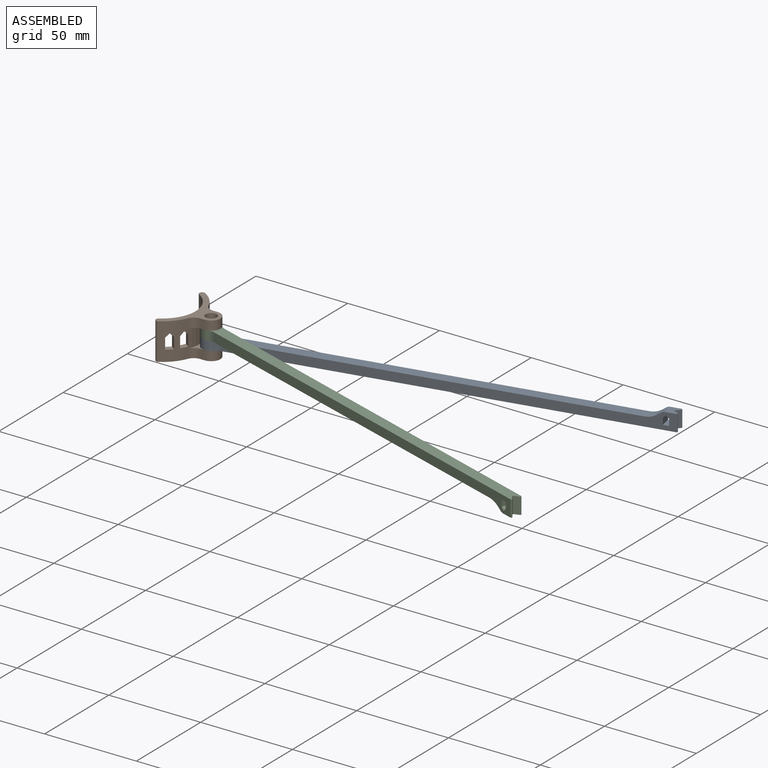
[diagram: assembled view]
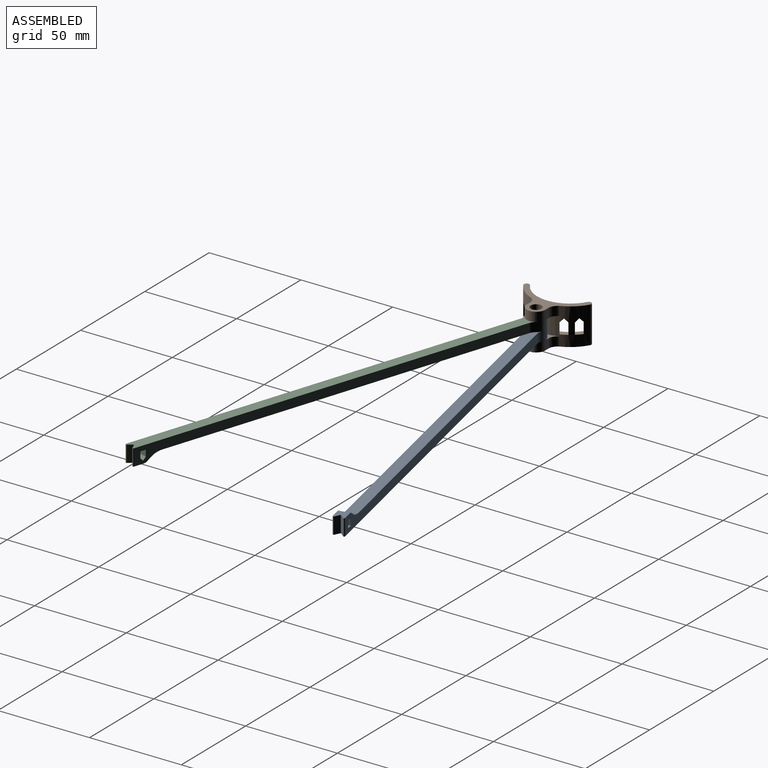
[diagram: assembled view, second angle]
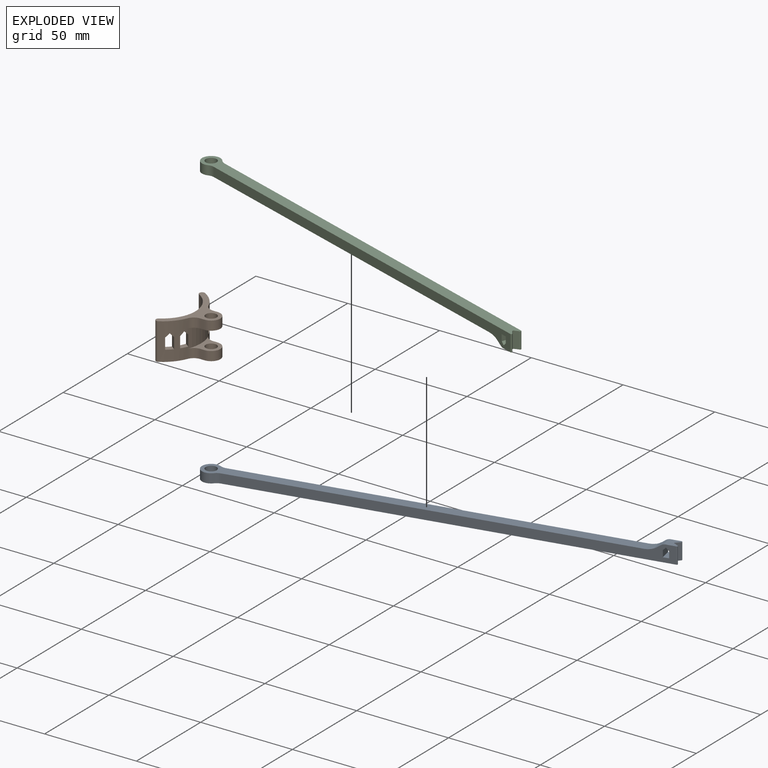
[diagram: exploded view]
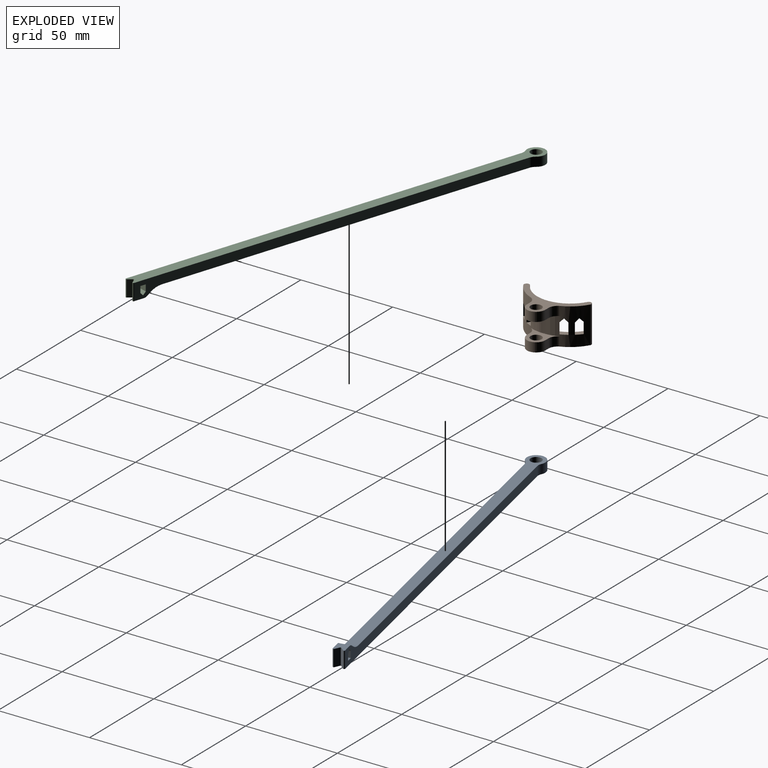
[diagram: exploded view, second angle]
ASSEMBLY  parts=3 mates=2
PART A: 20 faces, bbox 232x10x9 mm
  f0: plane 220.5x9mm, normal (0,-1,0), area 1127.9mm2, adj f2,f7,f8,f9,f11,f14,f15,f16
  f1: plane 220.5x9mm, normal (0,1,0), area 1127.9mm2, adj f2,f7,f8,f9,f12,f13,f15,f16
  f2: plane 215.55x10mm, normal (0,0,1), area 1286.3mm2, adj f0,f1,f3,f6,f9,f13,f14
  f3: cylinder r=5mm len=10mm, axis (0,0,-1), area 110.7mm2, adj f2,f7,f13,f14
  f4: plane 9x2.27mm, normal (0.6,0.8,0), area 25.5mm2, adj f7,f8,f10,f11
  f5: plane 9x2.27mm, normal (0.6,-0.8,0), area 25.5mm2, adj f7,f8,f10,f12
  f6: cylinder r=3mm len=6mm, axis (0,0,-1), area 94.2mm2, adj f2,f7
  f7: plane 232x10mm, normal (0,0,-1), area 1378.2mm2, adj f0,f1,f3,f4,f5,f6,f10,f11
  f8: plane 6x6mm, normal (0,0,1), area 29.2mm2, adj f0,f1,f4,f5,f9,f10,f11,f12
  f9: extruded ~10.45x6mm, area 68.6mm2, adj f0,f1,f2,f8
  f10: cylinder r=0.5mm len=9mm, axis (0,0,1), area 8.3mm2, adj f4,f5,f7,f8
  f11: cylinder r=0.5mm len=9mm, axis (0,0,1), area 11.2mm2, adj f0,f4,f7,f8
  f12: cylinder r=0.5mm len=9mm, axis (0,0,-1), area 11.2mm2, adj f1,f5,f7,f8
  f13: cylinder r=5mm len=5mm, axis (0,0,-1), area 16.1mm2, adj f1,f2,f3,f7
  f14: cylinder r=5mm len=5mm, axis (0,0,-1), area 16.1mm2, adj f0,f2,f3,f7
  f15: plane 6x3.5mm, normal (-1,0,0), area 21mm2, adj f0,f1,f16,f19
  f16: plane 6x1.5mm, normal (-0.71,0,-0.71), area 12.7mm2, adj f0,f1,f15,f17
  f17: plane 6x1.5mm, normal (0.71,0,-0.71), area 12.7mm2, adj f0,f1,f16,f18
  f18: plane 6x3.5mm, normal (1,0,0), area 21mm2, adj f0,f1,f17,f19
  f19: plane 6x3mm, normal (0,0,1), area 18mm2, adj f0,f1,f15,f18
PART B: 40 faces, bbox 23.3x36.8x20 mm
  f0: cylinder r=21mm len=36.37mm, axis (0,0,-1), area 600.1mm2, adj f6,f7,f8,f9,f10,f15,f16,f17
  f1: cylinder r=18mm len=31.18mm, axis (0,0,-1), area 639.6mm2, adj f7,f8,f9,f10,f16,f17,f18,f19
  f2: plane 5x2.5mm, normal (0,-1,0), area 12.5mm2, adj f3,f6,f7,f39
  f3: cylinder r=5mm len=10mm, axis (0,0,-1), area 78.5mm2, adj f2,f4,f6,f7
  f4: plane 5x2.5mm, normal (0,1,0), area 12.5mm2, adj f3,f6,f7,f38
  f5: cylinder r=3mm len=6mm, axis (0,0,-1), area 94.2mm2, adj f6,f7
  f6: plane 16.15x12.12mm, normal (0,0,1), area 72.5mm2, adj f0,f2,f3,f4,f5,f38,f39
  f7: plane 36.78x23.25mm, normal (0,0,-1), area 202.1mm2, adj f0,f1,f2,f3,f4,f5,f8,f9
  f8: cylinder r=1.5mm len=20mm, axis (0,0,-1), area 94.2mm2, adj f0,f1,f7,f10
  f9: cylinder r=1.5mm len=20mm, axis (0,0,-1), area 94.2mm2, adj f0,f1,f7,f10
  f10: plane 36.78x23.25mm, normal (0,0,1), area 202.1mm2, adj f0,f1,f8,f9,f11,f12,f13,f14
  f11: plane 5x2.5mm, normal (0,-1,0), area 12.5mm2, adj f10,f12,f15,f36
  f12: cylinder r=5mm len=10mm, axis (0,0,1), area 78.5mm2, adj f10,f11,f14,f15
  f13: cylinder r=3mm len=6mm, axis (0,0,1), area 94.2mm2, adj f10,f15
  f14: plane 5x2.5mm, normal (0,1,0), area 12.5mm2, adj f10,f12,f15,f37
  f15: plane 16.15x12.12mm, normal (0,0,-1), area 72.5mm2, adj f0,f11,f12,f13,f14,f36,f37
  f16: plane 6x2.41mm, normal (-0.6,-0.8,0), area 18mm2, adj f0,f1,f17,f20
  f17: plane 3.83x3.27mm, normal (-0.42,-0.57,-0.71), area 8.6mm2, adj f0,f1,f16,f18
  f18: plane 4.06x3.18mm, normal (0.42,0.57,-0.71), area 8.7mm2, adj f0,f1,f17,f19
  f19: plane 6x2.5mm, normal (0.6,0.8,0), area 18.7mm2, adj f0,f1,f18,f20
  f20: plane 5.43x4.61mm, normal (0,0,1), area 12.2mm2, adj f0,f1,f16,f19
  f21: plane 3.58x3.43mm, normal (0.42,0.57,-0.71), area 8.6mm2, adj f0,f1,f22,f25
  f22: plane 6x2.41mm, normal (0.6,0.8,0), area 18mm2, adj f0,f1,f21,f23
  f23: plane 5.47x4.28mm, normal (0,0,1), area 12.2mm2, adj f0,f1,f22,f24
  f24: plane 6x2.5mm, normal (-0.6,-0.8,0), area 18.7mm2, adj f0,f1,f23,f25
  f25: plane 3.75x3.31mm, normal (-0.42,-0.57,-0.71), area 8.7mm2, adj f0,f1,f21,f24
  f26: plane 6x2.41mm, normal (0.6,-0.8,0), area 18mm2, adj f0,f1,f27,f30
  f27: plane 3.58x3.43mm, normal (0.42,-0.57,-0.71), area 8.6mm2, adj f0,f1,f26,f28
  f28: plane 3.75x3.31mm, normal (-0.42,0.57,-0.71), area 8.7mm2, adj f0,f1,f27,f29
  f29: plane 6x2.5mm, normal (-0.6,0.8,0), area 18.7mm2, adj f0,f1,f28,f30
  f30: plane 5.47x4.28mm, normal (0,0,1), area 12.2mm2, adj f0,f1,f26,f29
  f31: plane 3.83x3.27mm, normal (-0.42,0.57,-0.71), area 8.6mm2, adj f0,f1,f32,f35
  f32: plane 6x2.41mm, normal (-0.6,0.8,0), area 18mm2, adj f0,f1,f31,f33
  f33: plane 5.43x4.61mm, normal (0,0,1), area 12.2mm2, adj f0,f1,f32,f34
  f34: plane 6x2.5mm, normal (0.6,-0.8,0), area 18.7mm2, adj f0,f1,f33,f35
  f35: plane 4.06x3.18mm, normal (0.42,-0.57,-0.71), area 8.7mm2, adj f0,f1,f31,f34
  f36: cylinder r=5mm len=5mm, axis (0,0,-1), area 29.4mm2, adj f0,f10,f11,f15
  f37: cylinder r=5mm len=5mm, axis (0,0,-1), area 29.4mm2, adj f0,f10,f14,f15
  f38: cylinder r=5mm len=5mm, axis (0,0,-1), area 29.4mm2, adj f0,f4,f6,f7
  f39: cylinder r=5mm len=5mm, axis (0,0,-1), area 29.4mm2, adj f0,f2,f6,f7
PART C: same geometry as A
PLACE A rot(axis=(0,0,1),12.1deg) t=(11.39,6.18,3.74)mm
PLACE B t=(-15.11,6.18,-1.26)mm fixed
PLACE C rot(axis=(0.99,-0.16,0),180deg) t=(11.39,6.18,13.74)mm
MATE revolute A.f6 <-> C.f6  axis (0,0,-1) through (11.39,6.18,8.74)mm
MATE revolute B.f5 <-> A.f6  axis (0,0,-1) through (11.39,6.18,3.74)mm
